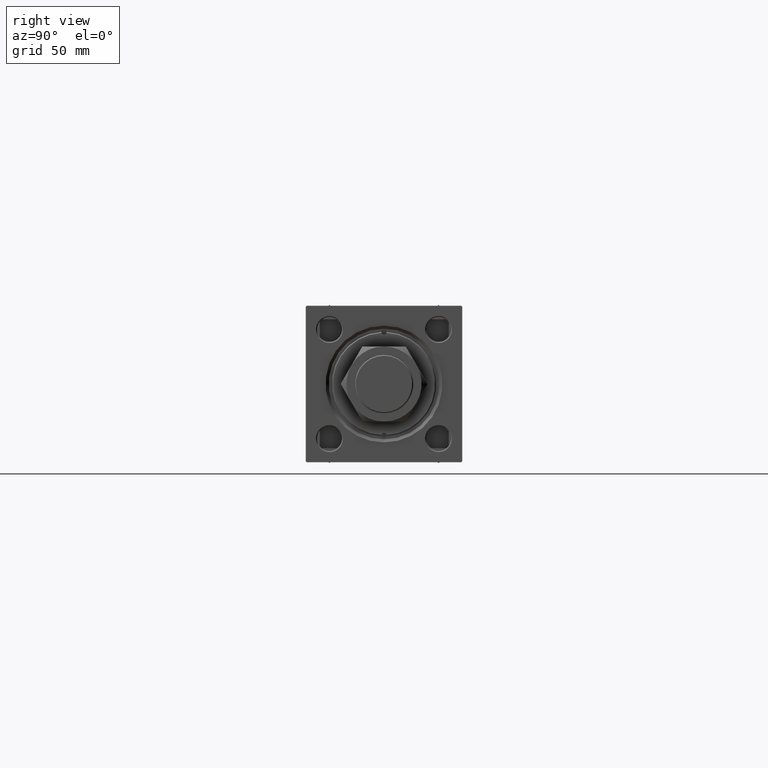
[diagram: clean part render]
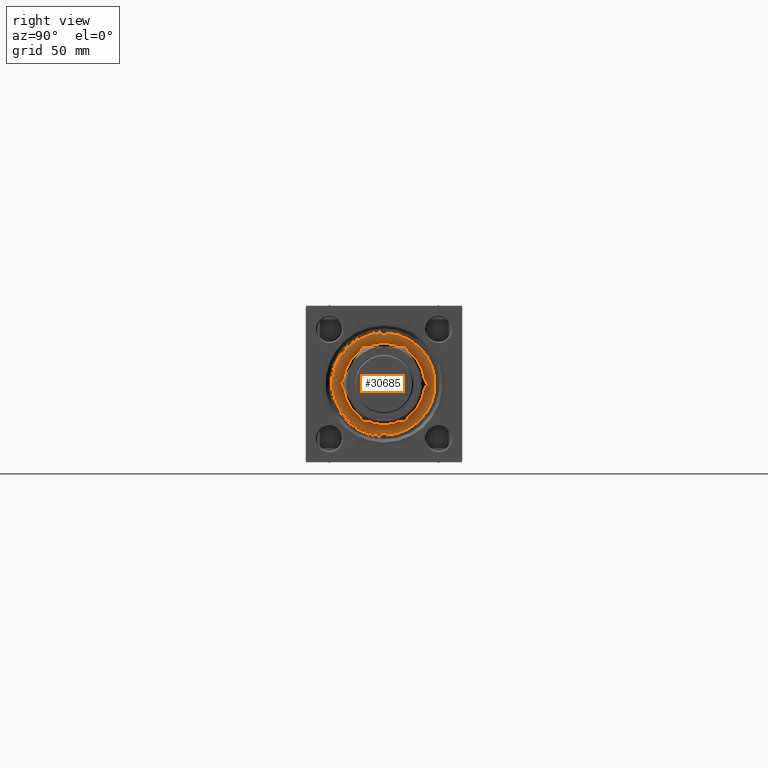
[diagram: same view with one face highlighted and labeled with its STEP entity id]
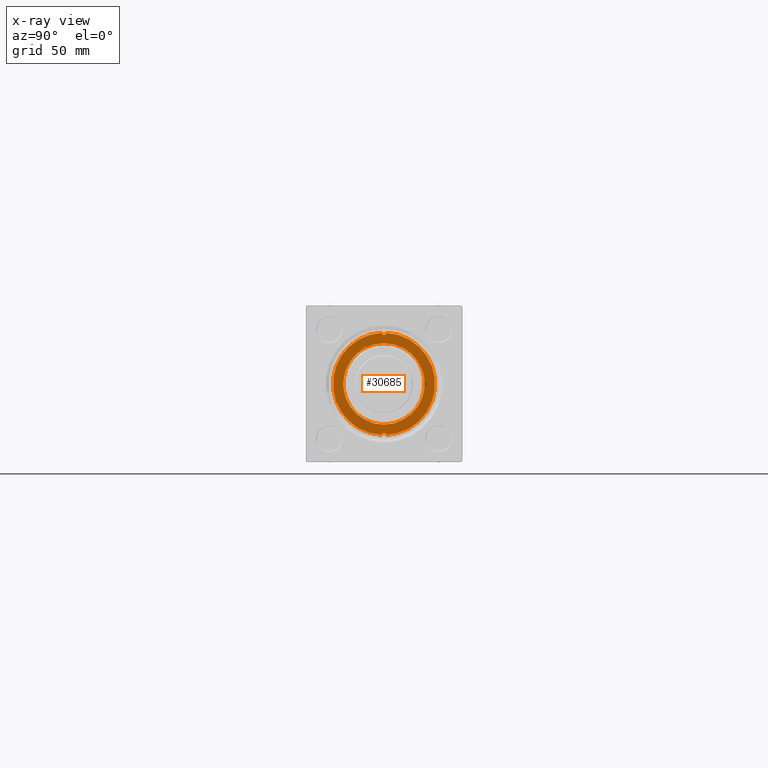
[diagram: x-ray of the same camera — body ghosted, the highlighted face saturated]
A machine part, right view. The second image highlights one B-rep face of the part: STEP entity #30685.
The next image is the same camera in x-ray: the body ghosted, the highlighted face saturated — about 3% of this face is hidden behind the body in this view.
In plain terms, the highlighted planar face has unit normal (1, 0, 0).
Its self-contained STEP definition (entity closure, byte-faithful):
#133 = ORIENTED_EDGE ( 'NONE', *, *, #36440, .F. ) ;
#473 = CARTESIAN_POINT ( 'NONE',  ( 19.50000000000000000, 0.000000000000000000, 37.69999999999999574 ) ) ;
#991 = CARTESIAN_POINT ( 'NONE',  ( -19.50000000000000000, 2.388061258337338939E-15, 37.69999999999999574 ) ) ;
#1139 = DIRECTION ( 'NONE',  ( 1.000000000000000000, 0.000000000000000000, 0.000000000000000000 ) ) ;
#1826 = CIRCLE ( 'NONE', #6883, 19.50000000000000000 ) ;
#1864 = CARTESIAN_POINT ( 'NONE',  ( 24.46969696969699370, -1.218166741954053167, 37.69999999999999574 ) ) ;
#2466 = ORIENTED_EDGE ( 'NONE', *, *, #29099, .T. ) ;
#2654 = DIRECTION ( 'NONE',  ( 0.000000000000000000, 0.000000000000000000, 1.000000000000000000 ) ) ;
#3042 = CARTESIAN_POINT ( 'NONE',  ( 23.50000000000000000, 1.530808498934190831E-16, 37.69999999999999574 ) ) ;
#3228 = DIRECTION ( 'NONE',  ( -0.000000000000000000, -0.000000000000000000, 1.000000000000000000 ) ) ;
#5239 = DIRECTION ( 'NONE',  ( -0.000000000000000000, -0.000000000000000000, 1.000000000000000000 ) ) ;
#5717 = CIRCLE ( 'NONE', #35228, 1.250000000000001110 ) ;
#6069 = PLANE ( 'NONE',  #9451 ) ;
#6439 = DIRECTION ( 'NONE',  ( 1.000000000000000000, 0.000000000000000000, 0.000000000000000000 ) ) ;
#6831 = ORIENTED_EDGE ( 'NONE', *, *, #9238, .F. ) ;
#6883 = AXIS2_PLACEMENT_3D ( 'NONE', #38066, #13032, #49915 ) ;
#9238 = EDGE_CURVE ( 'NONE', #36681, #9727, #25729, .T. ) ;
#9352 = ORIENTED_EDGE ( 'NONE', *, *, #21927, .F. ) ;
#9451 = AXIS2_PLACEMENT_3D ( 'NONE', #38272, #30618, #46417 ) ;
#9640 = DIRECTION ( 'NONE',  ( 1.000000000000000000, 0.000000000000000000, 0.000000000000000000 ) ) ;
#9727 = VERTEX_POINT ( 'NONE', #1864 ) ;
#10213 = CARTESIAN_POINT ( 'NONE',  ( -24.46969696969699370, -1.218166741954054055, 37.69999999999999574 ) ) ;
#10341 = AXIS2_PLACEMENT_3D ( 'NONE', #41474, #25147, #1139 ) ;
#10843 = DIRECTION ( 'NONE',  ( 1.000000000000000000, 0.000000000000000000, 0.000000000000000000 ) ) ;
#11551 = CARTESIAN_POINT ( 'NONE',  ( 24.46969696969699370, 1.218166741954054055, 37.69999999999999574 ) ) ;
#13032 = DIRECTION ( 'NONE',  ( 0.000000000000000000, 0.000000000000000000, 1.000000000000000000 ) ) ;
#15639 = ORIENTED_EDGE ( 'NONE', *, *, #34249, .F. ) ;
#16589 = VERTEX_POINT ( 'NONE', #11551 ) ;
#17884 = CIRCLE ( 'NONE', #10341, 1.250000000000001110 ) ;
#18318 = CARTESIAN_POINT ( 'NONE',  ( -24.75000000000000000, 0.000000000000000000, 37.69999999999999574 ) ) ;
#19472 = EDGE_CURVE ( 'NONE', #16589, #36681, #31893, .T. ) ;
#20299 = CIRCLE ( 'NONE', #25387, 24.50000000000002487 ) ;
#21054 = VERTEX_POINT ( 'NONE', #10213 ) ;
#21313 = CIRCLE ( 'NONE', #43998, 19.50000000000000000 ) ;
#21927 = EDGE_CURVE ( 'NONE', #21054, #23231, #5717, .T. ) ;
#22719 = CARTESIAN_POINT ( 'NONE',  ( 0.000000000000000000, 0.000000000000000000, 37.69999999999999574 ) ) ;
#22889 = CARTESIAN_POINT ( 'NONE',  ( 0.000000000000000000, 0.000000000000000000, 37.69999999999999574 ) ) ;
#23008 = VERTEX_POINT ( 'NONE', #40440 ) ;
#23231 = VERTEX_POINT ( 'NONE', #39858 ) ;
#24023 = ORIENTED_EDGE ( 'NONE', *, *, #33846, .T. ) ;
#25037 = EDGE_LOOP ( 'NONE', ( #9352, #2466, #6831, #26441, #24023, #30248 ) ) ;
#25147 = DIRECTION ( 'NONE',  ( -0.000000000000000000, -0.000000000000000000, 1.000000000000000000 ) ) ;
#25387 = AXIS2_PLACEMENT_3D ( 'NONE', #22889, #25795, #26064 ) ;
#25729 = CIRCLE ( 'NONE', #29961, 1.250000000000001110 ) ;
#25795 = DIRECTION ( 'NONE',  ( 0.000000000000000000, 0.000000000000000000, 1.000000000000000000 ) ) ;
#26064 = DIRECTION ( 'NONE',  ( 1.000000000000000000, 0.000000000000000000, 0.000000000000000000 ) ) ;
#26441 = ORIENTED_EDGE ( 'NONE', *, *, #19472, .F. ) ;
#27255 = DIRECTION ( 'NONE',  ( 1.000000000000000000, 0.000000000000000000, 0.000000000000000000 ) ) ;
#29099 = EDGE_CURVE ( 'NONE', #21054, #9727, #20299, .T. ) ;
#29961 = AXIS2_PLACEMENT_3D ( 'NONE', #41617, #5239, #38211 ) ;
#30248 = ORIENTED_EDGE ( 'NONE', *, *, #32224, .F. ) ;
#30618 = DIRECTION ( 'NONE',  ( 0.000000000000000000, 0.000000000000000000, 1.000000000000000000 ) ) ;
#30685 = ADVANCED_FACE ( 'NONE', ( #34054, #38792 ), #6069, .T. ) ;
#31893 = CIRCLE ( 'NONE', #38623, 1.250000000000001110 ) ;
#32224 = EDGE_CURVE ( 'NONE', #23231, #23008, #17884, .T. ) ;
#32720 = VERTEX_POINT ( 'NONE', #473 ) ;
#33846 = EDGE_CURVE ( 'NONE', #16589, #23008, #51479, .T. ) ;
#34054 = FACE_OUTER_BOUND ( 'NONE', #25037, .T. ) ;
#34166 = DIRECTION ( 'NONE',  ( 0.000000000000000000, 0.000000000000000000, 1.000000000000000000 ) ) ;
#34249 = EDGE_CURVE ( 'NONE', #39218, #32720, #1826, .T. ) ;
#35228 = AXIS2_PLACEMENT_3D ( 'NONE', #18318, #50476, #6439 ) ;
#35699 = CARTESIAN_POINT ( 'NONE',  ( 24.75000000000000000, 0.000000000000000000, 37.69999999999999574 ) ) ;
#36440 = EDGE_CURVE ( 'NONE', #32720, #39218, #21313, .T. ) ;
#36681 = VERTEX_POINT ( 'NONE', #3042 ) ;
#37438 = EDGE_LOOP ( 'NONE', ( #133, #15639 ) ) ;
#38066 = CARTESIAN_POINT ( 'NONE',  ( 0.000000000000000000, 0.000000000000000000, 37.69999999999999574 ) ) ;
#38211 = DIRECTION ( 'NONE',  ( 1.000000000000000000, 0.000000000000000000, 0.000000000000000000 ) ) ;
#38272 = CARTESIAN_POINT ( 'NONE',  ( 0.000000000000000000, 0.000000000000000000, 37.69999999999999574 ) ) ;
#38623 = AXIS2_PLACEMENT_3D ( 'NONE', #35699, #3228, #27255 ) ;
#38792 = FACE_BOUND ( 'NONE', #37438, .T. ) ;
#39218 = VERTEX_POINT ( 'NONE', #991 ) ;
#39858 = CARTESIAN_POINT ( 'NONE',  ( -23.50000000000000000, 0.000000000000000000, 37.69999999999999574 ) ) ;
#40440 = CARTESIAN_POINT ( 'NONE',  ( -24.46969696969699370, 1.218166741954053167, 37.69999999999999574 ) ) ;
#41474 = CARTESIAN_POINT ( 'NONE',  ( -24.75000000000000000, 0.000000000000000000, 37.69999999999999574 ) ) ;
#41617 = CARTESIAN_POINT ( 'NONE',  ( 24.75000000000000000, 0.000000000000000000, 37.69999999999999574 ) ) ;
#42361 = AXIS2_PLACEMENT_3D ( 'NONE', #45233, #34166, #9640 ) ;
#43998 = AXIS2_PLACEMENT_3D ( 'NONE', #22719, #2654, #10843 ) ;
#45233 = CARTESIAN_POINT ( 'NONE',  ( 0.000000000000000000, 0.000000000000000000, 37.69999999999999574 ) ) ;
#46417 = DIRECTION ( 'NONE',  ( 1.000000000000000000, 0.000000000000000000, -0.000000000000000000 ) ) ;
#49915 = DIRECTION ( 'NONE',  ( 1.000000000000000000, 0.000000000000000000, 0.000000000000000000 ) ) ;
#50476 = DIRECTION ( 'NONE',  ( -0.000000000000000000, -0.000000000000000000, 1.000000000000000000 ) ) ;
#51479 = CIRCLE ( 'NONE', #42361, 24.50000000000002487 ) ;